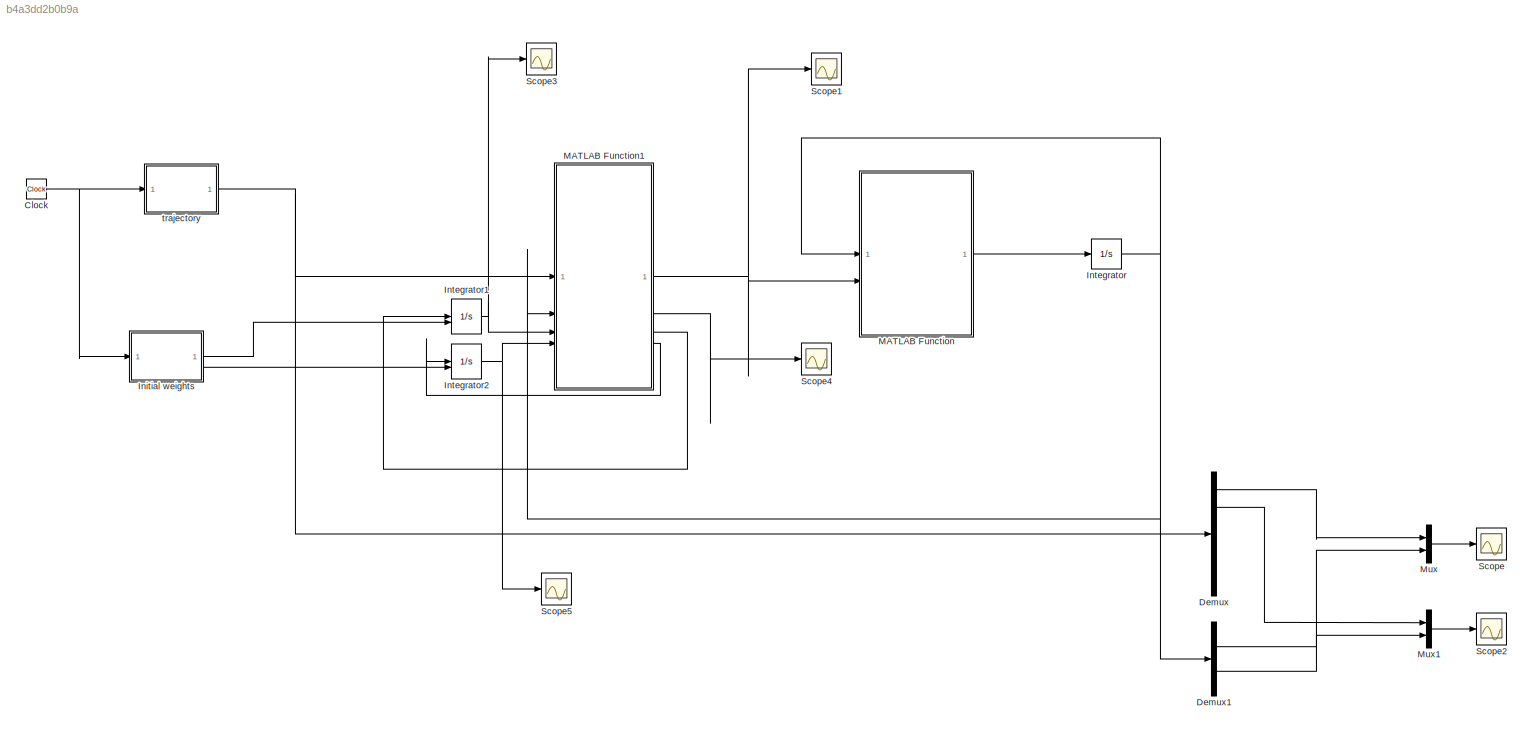
MODEL slx_b4a3dd2b0b9a
KIND model
CONFIG AbsTol = auto
CONFIG EnableMultiTasking = off
CONFIG FixedStep = 10e-5
CONFIG MaxStep = auto
CONFIG MinStep = auto
CONFIG RelTol = auto
CONFIG SampleTimeConstraint = Unconstrained
CONFIG SolverName = VariableStepAuto
CONFIG StartTime = 0.0
CONFIG StopTime = 1000
BLOCK [Clock] Clock
BLOCK [Demux] Demux
  Outputs = 6
BLOCK [Demux] Demux1
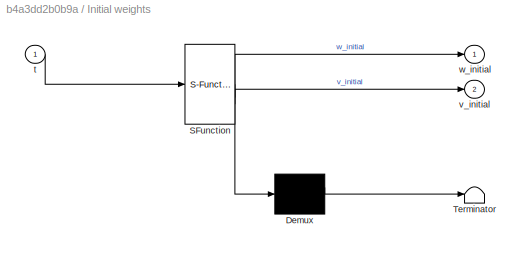
BLOCK [SubSystem] Initial weights
  ErrorFcn = Stateflow.Translate.translate
  PermitHierarchicalResolution = ExplicitOnly
  SFBlockType = MATLAB Function
  TreatAsAtomicUnit = on
BLOCK [Demux] Initial weights/ Demux 
  Outputs = 1
BLOCK [S-Function] Initial weights/ SFunction 
  EnableBusSupport = on
  FunctionName = sf_sfun
  PortCounts = [1 3]
  SFcnIsStateOwnerBlock = off
  SFunctionDeploymentMode = off
  Tag = Stateflow S-Function 4
BLOCK [Terminator] Initial weights/ Terminator 
BLOCK [Inport] Initial weights/t
BLOCK [Outport] Initial weights/v_initial
  Port = 2
  VectorParamsAs1DForOutWhenUnconnected = off
BLOCK [Outport] Initial weights/w_initial
  VectorParamsAs1DForOutWhenUnconnected = off
BLOCK [Integrator] Integrator
  InitialCondition = [0;0;0;0]
BLOCK [Integrator] Integrator1
  InitialCondition = [0;0]
  InitialConditionSource = external
BLOCK [Integrator] Integrator2
  InitialCondition = [0;0]
  InitialConditionSource = external
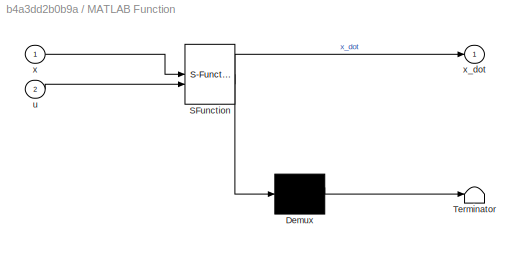
BLOCK [SubSystem] MATLAB Function
  ErrorFcn = Stateflow.Translate.translate
  PermitHierarchicalResolution = ExplicitOnly
  SFBlockType = MATLAB Function
  TreatAsAtomicUnit = on
BLOCK [Demux] MATLAB Function/ Demux 
  Outputs = 1
BLOCK [S-Function] MATLAB Function/ SFunction 
  EnableBusSupport = on
  FunctionName = sf_sfun
  PortCounts = [2 2]
  SFcnIsStateOwnerBlock = off
  SFunctionDeploymentMode = off
  Tag = Stateflow S-Function 2
BLOCK [Terminator] MATLAB Function/ Terminator 
BLOCK [Inport] MATLAB Function/u
  Port = 2
BLOCK [Inport] MATLAB Function/x
BLOCK [Outport] MATLAB Function/x_dot
  VectorParamsAs1DForOutWhenUnconnected = off
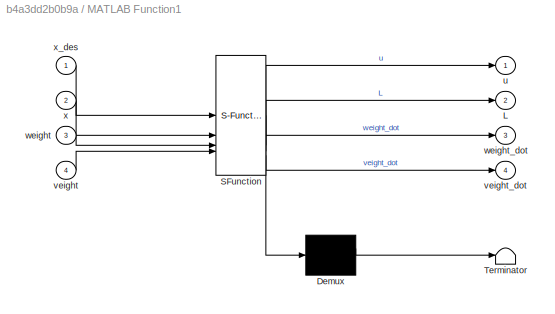
BLOCK [SubSystem] MATLAB Function1
  ErrorFcn = Stateflow.Translate.translate
  PermitHierarchicalResolution = ExplicitOnly
  SFBlockType = MATLAB Function
  TreatAsAtomicUnit = on
BLOCK [Demux] MATLAB Function1/ Demux 
  Outputs = 1
BLOCK [S-Function] MATLAB Function1/ SFunction 
  EnableBusSupport = on
  FunctionName = sf_sfun
  PortCounts = [4 5]
  SFcnIsStateOwnerBlock = off
  SFunctionDeploymentMode = off
  Tag = Stateflow S-Function 1
BLOCK [Terminator] MATLAB Function1/ Terminator 
BLOCK [Outport] MATLAB Function1/L
  Port = 2
  VectorParamsAs1DForOutWhenUnconnected = off
BLOCK [Outport] MATLAB Function1/u
  VectorParamsAs1DForOutWhenUnconnected = off
BLOCK [Inport] MATLAB Function1/veight
  Port = 4
BLOCK [Outport] MATLAB Function1/veight_dot
  Port = 4
  VectorParamsAs1DForOutWhenUnconnected = off
BLOCK [Inport] MATLAB Function1/weight
  Port = 3
BLOCK [Outport] MATLAB Function1/weight_dot
  Port = 3
  VectorParamsAs1DForOutWhenUnconnected = off
BLOCK [Inport] MATLAB Function1/x
  Port = 2
BLOCK [Inport] MATLAB Function1/x_des
BLOCK [Mux] Mux
  DisplayOption = bar
  Inputs = 2
BLOCK [Mux] Mux1
  DisplayOption = bar
  Inputs = 2
BLOCK [Scope] Scope
  Floating = off
  NumInputPorts = 1
  ScopeSpecificationString = Simulink.scopes.TimeScopeBlockCfg('CurrentConfiguration', extmgr.ConfigurationSet(extmgr.Configuration('Core','General UI',true),extmgr.Configuration('Core','Source UI',true),extmgr.Configuration('Sources','WiredSimulink',true),extmgr.Configuration('Visuals','Time Domain',true,'SerializedDisplays',{struct('MinYLimReal','-1.0235','MaxYLimReal','1.22192','YLabelReal','','MinYLimMag','0.00000','MaxYL...<+1407ch>
BLOCK [Scope] Scope1
  Floating = off
  NumInputPorts = 1
  ScopeSpecificationString = Simulink.scopes.TimeScopeBlockCfg('CurrentConfiguration', extmgr.ConfigurationSet(extmgr.Configuration('Core','General UI',true),extmgr.Configuration('Core','Source UI',true),extmgr.Configuration('Sources','WiredSimulink',true,'DataLoggingVariableName','ScopeData1'),extmgr.Configuration('Visuals','Time Domain',true,'SerializedDisplays',{struct('MinYLimReal','-23702.91761','MaxYLimReal','23172.3314...<+1503ch>
BLOCK [Scope] Scope2
  Floating = off
  NumInputPorts = 1
  ScopeSpecificationString = Simulink.scopes.TimeScopeBlockCfg('CurrentConfiguration', extmgr.ConfigurationSet(extmgr.Configuration('Core','General UI',true),extmgr.Configuration('Core','Source UI',true),extmgr.Configuration('Sources','WiredSimulink',true,'DataLoggingVariableName','ScopeData1'),extmgr.Configuration('Visuals','Time Domain',true,'SerializedDisplays',{struct('MinYLimReal','-1.36615','MaxYLimReal','1.26533','YLab...<+1448ch>
BLOCK [Scope] Scope3
  Floating = off
  NumInputPorts = 1
  ScopeSpecificationString = Simulink.scopes.TimeScopeBlockCfg('CurrentConfiguration', extmgr.ConfigurationSet(extmgr.Configuration('Core','General UI',true),extmgr.Configuration('Core','Source UI',true),extmgr.Configuration('Sources','WiredSimulink',true,'DataLoggingVariableName','ScopeData1'),extmgr.Configuration('Visuals','Time Domain',true,'SerializedDisplays',{struct('MinYLimReal','-365.6115','MaxYLimReal','363.1967','YL...<+1805ch>
BLOCK [Scope] Scope4
  Floating = off
  NumInputPorts = 1
  ScopeSpecificationString = Simulink.scopes.TimeScopeBlockCfg('CurrentConfiguration', extmgr.ConfigurationSet(extmgr.Configuration('Core','General UI',true),extmgr.Configuration('Core','Source UI',true),extmgr.Configuration('Sources','WiredSimulink',true,'DataLoggingVariableName','ScopeData2'),extmgr.Configuration('Visuals','Time Domain',true,'SerializedDisplays',{struct('MinYLimReal','-10.29701','MaxYLimReal','92.67313','YL...<+1454ch>
BLOCK [Scope] Scope5
  Floating = off
  NumInputPorts = 1
  ScopeSpecificationString = Simulink.scopes.TimeScopeBlockCfg('CurrentConfiguration', extmgr.ConfigurationSet(extmgr.Configuration('Core','General UI',true),extmgr.Configuration('Core','Source UI',true),extmgr.Configuration('Sources','WiredSimulink',true,'DataLoggingVariableName','ScopeData1'),extmgr.Configuration('Visuals','Time Domain',true,'SerializedDisplays',{struct('MinYLimReal','-46.30547','MaxYLimReal','39.19704','YL...<+3671ch>
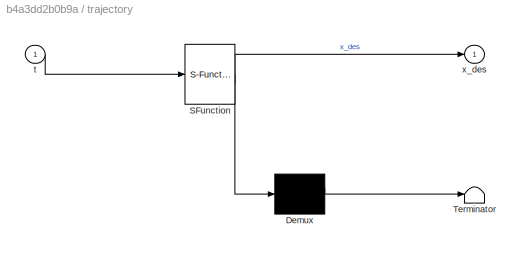
BLOCK [SubSystem] trajectory
  ErrorFcn = Stateflow.Translate.translate
  PermitHierarchicalResolution = ExplicitOnly
  SFBlockType = MATLAB Function
  TreatAsAtomicUnit = on
BLOCK [Demux] trajectory/ Demux 
  Outputs = 1
BLOCK [S-Function] trajectory/ SFunction 
  EnableBusSupport = on
  FunctionName = sf_sfun
  PortCounts = [1 2]
  SFcnIsStateOwnerBlock = off
  SFunctionDeploymentMode = off
  Tag = Stateflow S-Function 3
BLOCK [Terminator] trajectory/ Terminator 
BLOCK [Inport] trajectory/t
BLOCK [Outport] trajectory/x_des
  VectorParamsAs1DForOutWhenUnconnected = off
NET Clock:1 -> Initial weights:1, trajectory:1
LINE Demux1:1 -> Mux:2
LINE Demux1:2 -> Mux1:2
LINE Demux:1 -> Mux:1
LINE Demux:2 -> Mux1:1
LINE Initial weights:1 -> Integrator1:2
LINE Initial weights:2 -> Integrator2:2
NET Integrator1:1 -> MATLAB Function1:3, Scope3:1
NET Integrator2:1 -> MATLAB Function1:4, Scope5:1
NET Integrator:1 -> Demux1:1, MATLAB Function1:2, MATLAB Function:1
NET MATLAB Function1:1 -> MATLAB Function:2, Scope1:1
LINE MATLAB Function1:2 -> Scope4:1
LINE MATLAB Function1:3 -> Integrator1:1
LINE MATLAB Function1:4 -> Integrator2:1
LINE MATLAB Function:1 -> Integrator:1
LINE Mux1:1 -> Scope2:1
LINE Mux:1 -> Scope:1
NET trajectory:1 -> Demux:1, MATLAB Function1:1
note: NET lines group one-source signal fan-out (src -> all destinations, sorted); 1:1 wires keep LINE
CHART MATLAB Function1 states=1 transitions=1
  STATE_LABEL 'eML_blk_kernel()'
  STATE_LABEL "SCRIPT:\nfunction [u,L,weight_dot,veight_dot]  = fcn(x_des,x,weight,veight)\n\ng= 9.81; % arm parameters\n \nKv = 50*eye(2); % controller parameters\nlam = 5*eye(2);\n\n% tracking errors\nqd = x_des(1:2,1);\nqdp = x_des(3:4,1);\nqdpp = x_des(5:6,1);\n\ne = qd - [x(1) x(2)]';\nep = qdp - [x(3) x(4)]';\n\nr = ep + lam*e;\n\n%%%%%%%%%%%%%%%%%%%%%%%%%%%%%%%%%%%%%%%%%%%%%%%%%%%%%%%%%%\n%% MLP ideal case application\n% inp...<+1600ch>"
CHART MATLAB Function states=1 transitions=1
  STATE_LABEL 'eML_blk_kernel()'
  STATE_LABEL 'SCRIPT:\nfunction x_dot = fcn(x,u)\n\n% arm parameters\nm1 = 0.8; \nm2 = 2.3; \na1 = 1; \na2 = 1; \ng = 9.81;   \n\n% inertia M(q) and nonlinear terms N(q,qdot)\nM11= (m1 + m2)*a1^2 + m2*a2^2 + 2*m2*a1*a2*cos(x(2)) ;\nM12= m2*a2^2 + m2*a1*a2*cos(x(2)) ;\nM22= m2*a2^2 ;\nN1= -m2*a1*a2*(2*x(3)*x(4) + x(4)^2)*sin(x(2)) ;\nN1= N1 + (m1 + m2)*g*a1*cos(x(1)) + m2*g*a2*cos(x(1) + x(2));\nN2= m2*a1*a2*x(3)^2*sin(x(2)) + ...<+397ch>'
CHART trajectory states=1 transitions=1
  STATE_LABEL 'eML_blk_kernel()'
  STATE_LABEL "SCRIPT:\nfunction x_des = fcn(t)\n\n% compute desired trajectory\nperiod= 1 ; amp1= 1 ; amp2= 1 ;\nfact= 2*pi/period;\nsinf= sin(fact*t);\ncosf= cos(fact*t);\nqd= [amp1*sinf amp2*cosf];\nqdp= fact*[amp1*cosf -amp2*sinf];\nqdpp= -fact^2*qd;\n\nx_des = [qd qdp qdpp]';\n\nend"
CHART Initial weights states=1 transitions=1
  STATE_LABEL 'eML_blk_kernel()'
  STATE_LABEL 'SCRIPT:\nfunction [w_initial,v_initial]= fcn(t)\n\nH = 10;\nK = 2;\nI = 14;\n\nv = zeros(I,H);\nw = zeros(H+1,K);\n\nw_initial = w;\nv_initial = v;\n\n\nend'
CHART  states=0 transitions=0
CHART  states=0 transitions=0
CHART  states=0 transitions=0
CHART  states=0 transitions=0
